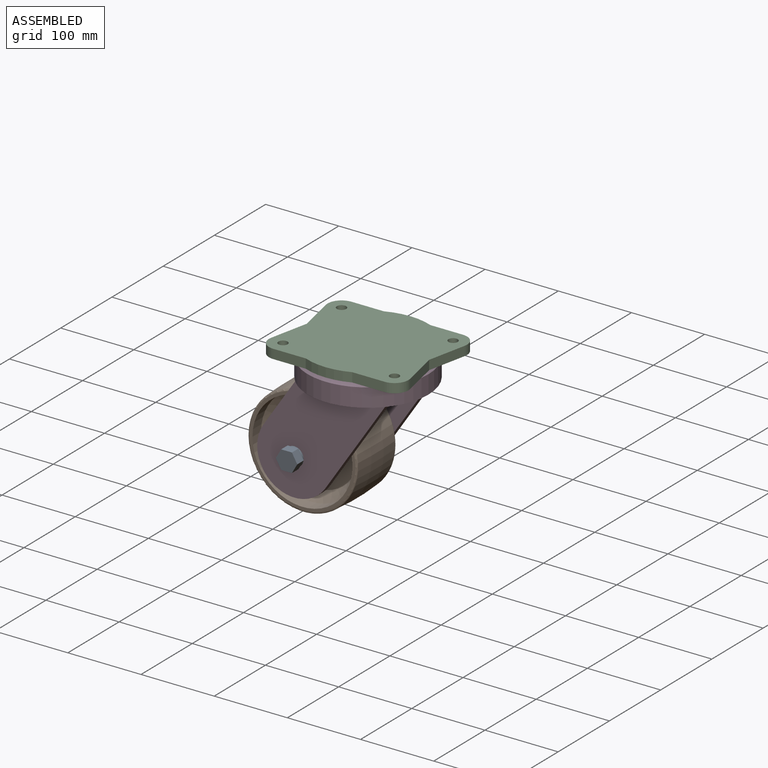
[diagram: assembled view]
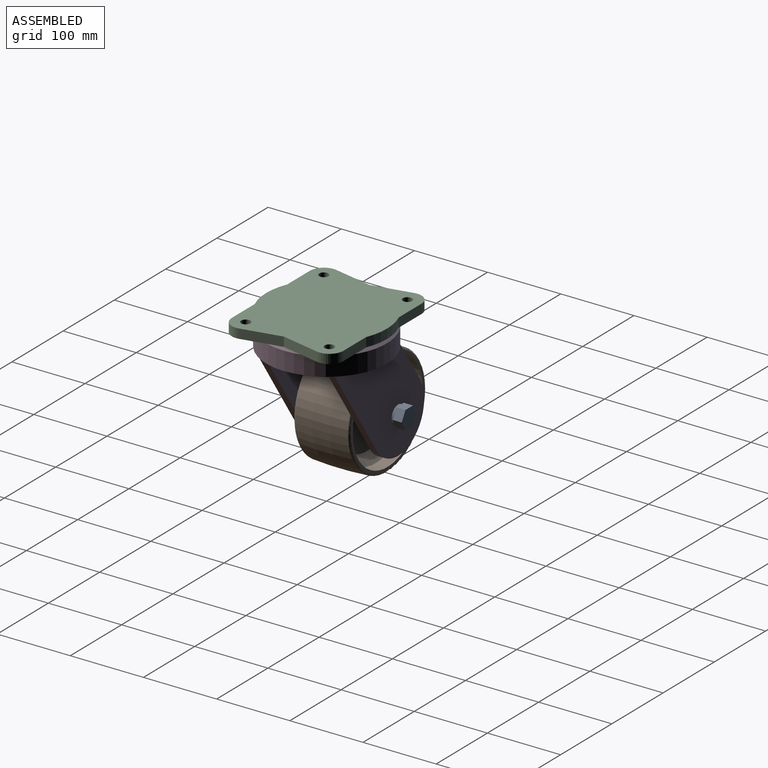
[diagram: assembled view, second angle]
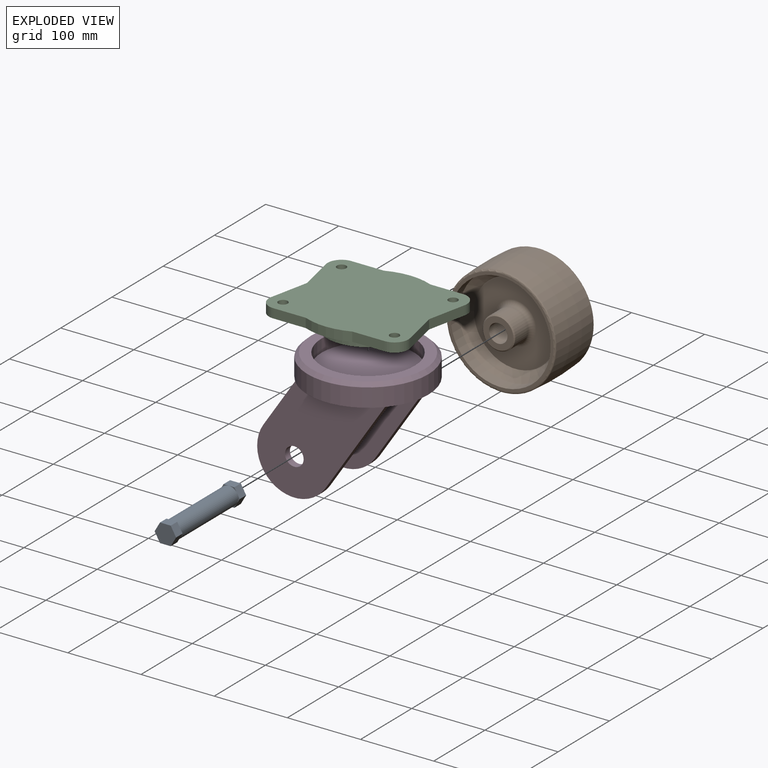
[diagram: exploded view]
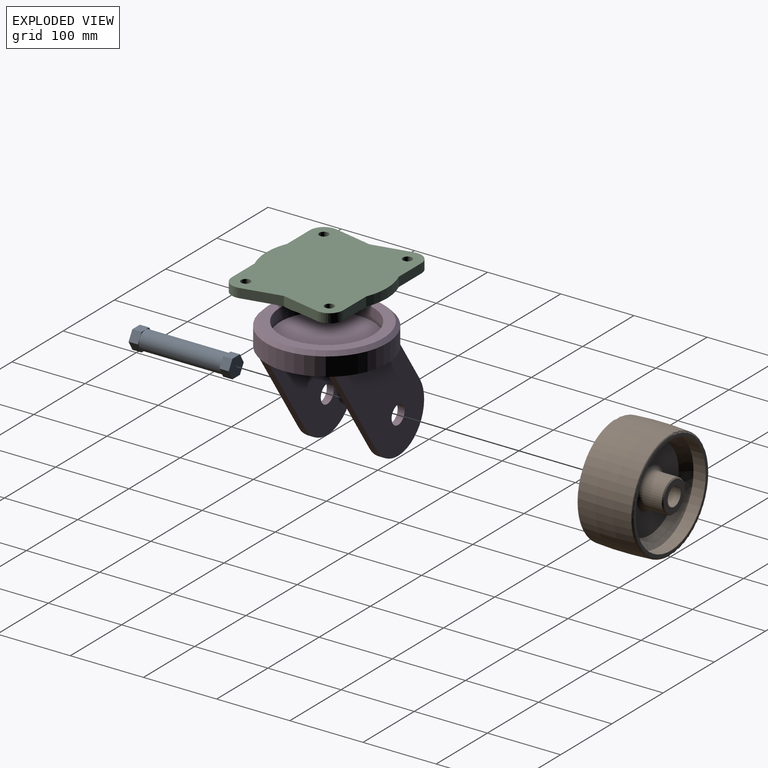
[diagram: exploded view, second angle]
ASSEMBLY  parts=4 mates=3
PART A: 17 faces, bbox 29.3x136.8x25.4 mm
  f0: cylinder r=12.67mm len=111.38mm, axis (0,1,0), area 8869.9mm2, adj f8,f16
  f1: plane 12.7x12.7mm, normal (0.87,0,0.5), area 186.2mm2, adj f2,f6,f7,f8
  f2: plane 14.66x12.7mm, normal (0,0,1), area 186.2mm2, adj f1,f3,f7,f8
  f3: plane 12.7x12.7mm, normal (-0.87,0,0.5), area 186.2mm2, adj f2,f4,f7,f8
  f4: plane 12.7x12.7mm, normal (-0.87,0,-0.5), area 186.2mm2, adj f3,f5,f7,f8
  f5: plane 14.66x12.7mm, normal (0,0,-1), area 186.2mm2, adj f4,f6,f7,f8
  f6: plane 12.7x12.7mm, normal (0.87,0,-0.5), area 186.2mm2, adj f1,f5,f7,f8
  f7: plane 29.33x25.4mm, normal (0,-1,0), area 558.7mm2, adj f1,f2,f3,f4,f5,f6
  f8: plane 29.33x25.4mm, normal (0,1,0), area 54mm2, adj f0,f1,f2,f3,f4,f5,f6
  f9: plane 12.7x12.7mm, normal (0.87,0,0.5), area 186.2mm2, adj f10,f14,f15,f16
  f10: plane 14.66x12.7mm, normal (0,0,1), area 186.2mm2, adj f9,f11,f15,f16
  f11: plane 12.7x12.7mm, normal (-0.87,0,0.5), area 186.2mm2, adj f10,f12,f15,f16
  f12: plane 12.7x12.7mm, normal (-0.87,0,-0.5), area 186.2mm2, adj f11,f13,f15,f16
  f13: plane 14.66x12.7mm, normal (0,0,-1), area 186.2mm2, adj f12,f14,f15,f16
  f14: plane 12.7x12.7mm, normal (0.87,0,-0.5), area 186.2mm2, adj f9,f13,f15,f16
  f15: plane 29.33x25.4mm, normal (0,1,0), area 558.7mm2, adj f9,f10,f11,f12,f13,f14
  f16: plane 29.33x25.4mm, normal (0,-1,0), area 54mm2, adj f0,f9,f10,f11,f12,f13,f14
PART B: 20 faces, bbox 162.1x85.7x162.1 mm
  f0: cone r=22.23mm half-angle=45deg, axis (0,-1,0), area 290.6mm2, adj f5,f17
  f1: torus R=72.33mm, axis (0,-1,0), area 1764mm2, adj f9,f19
  f2: cylinder r=68.33mm len=136.65mm, axis (0,-1,0), area 7186.1mm2, adj f3,f19
  f3: cone r=56.49mm half-angle=45deg, axis (0,1,0), area 6563.6mm2, adj f2,f18
  f4: torus R=28.57mm, axis (0,-1,0), area 1537.5mm2, adj f5,f18
  f5: cylinder r=22.23mm len=44.45mm, axis (0,-1,0), area 3555.8mm2, adj f0,f4
  f6: cylinder r=12.7mm len=85.73mm, axis (0,1,0), area 6840.6mm2, adj f14,f17
  f7: cone r=22.23mm half-angle=45deg, axis (0,1,0), area 290.6mm2, adj f13,f14
  f8: torus R=72.33mm, axis (0,1,0), area 1764mm2, adj f9,f16
  f9: revolved ~152.4x152.4mm, area 34064mm2, adj f1,f8
  f10: cylinder r=68.33mm len=136.65mm, axis (0,1,0), area 7186.1mm2, adj f11,f16
  f11: cone r=56.49mm half-angle=45deg, axis (0,-1,0), area 6563.6mm2, adj f10,f15
  f12: torus R=28.57mm, axis (0,1,0), area 1537.5mm2, adj f13,f15
  f13: cylinder r=22.23mm len=44.45mm, axis (0,1,0), area 3555.8mm2, adj f7,f12
  f14: plane 41.4x41.4mm, normal (0,-1,0), area 839.6mm2, adj f6,f7
  f15: plane 112.98x112.98mm, normal (0,-1,0), area 7459.9mm2, adj f11,f12
  f16: plane 144.65x144.65mm, normal (0,-1,0), area 1767.3mm2, adj f8,f10
  f17: plane 41.4x41.4mm, normal (0,1,0), area 839.6mm2, adj f0,f6
  f18: plane 112.98x112.98mm, normal (0,1,0), area 7459.9mm2, adj f3,f4
  f19: plane 144.65x144.65mm, normal (0,1,0), area 1767.3mm2, adj f1,f2
PART C: 25 faces, bbox 190.5x165.1x30.5 mm
  f0: cylinder r=6.35mm len=12.7mm, axis (0,0,1), area 506.7mm2, adj f15,f16
  f1: cylinder r=6.35mm len=12.7mm, axis (0,0,1), area 506.7mm2, adj f15,f16
  f2: cylinder r=19.05mm len=23.01mm, axis (0,0,1), area 430.7mm2, adj f15,f16,f22,f23
  f3: cylinder r=6.35mm len=12.7mm, axis (0,0,1), area 506.7mm2, adj f15,f16
  f4: cylinder r=6.35mm len=12.7mm, axis (0,0,1), area 506.7mm2, adj f15,f16
  f5: cone r=38.1mm half-angle=45deg, axis (0,0,-1), area 1605.2mm2, adj f6,f17
  f6: cylinder r=38.1mm len=76.2mm, axis (0,0,1), area 3040.2mm2, adj f5,f18
  f7: cylinder r=57.15mm len=114.3mm, axis (0,0,1), area 6384.5mm2, adj f15,f18
  f8: cylinder r=19.05mm len=23.01mm, axis (0,0,1), area 430.7mm2, adj f12,f13,f15,f16
  f9: plane 53.19x12.7mm, normal (-0.98,0.21,0), area 690.6mm2, adj f10,f15,f16,f19
  f10: cylinder r=19.05mm len=23.01mm, axis (0,0,1), area 430.7mm2, adj f9,f11,f15,f16
  f11: plane 44.45x12.7mm, normal (0,-1,0), area 564.5mm2, adj f10,f14,f15,f16
  f12: plane 44.45x12.7mm, normal (0,-1,0), area 564.5mm2, adj f8,f14,f15,f16
  f13: plane 53.19x12.7mm, normal (0.98,0.21,0), area 690.6mm2, adj f8,f15,f16,f23
  f14: cylinder r=82.55mm len=63.5mm, axis (0,0,1), area 827.8mm2, adj f11,f12,f15,f16
  f15: plane 190.5x165.1mm, normal (0,0,-1), area 17201.6mm2, adj f0,f1,f2,f3,f4,f7,f8,f9
  f16: plane 190.5x165.1mm, normal (0,0,1), area 27462.4mm2, adj f0,f1,f2,f3,f4,f8,f9,f10
  f17: plane 66.04x66.04mm, normal (0,0,-1), area 3425.3mm2, adj f5
  f18: plane 114.3x114.3mm, normal (0,0,-1), area 5700.5mm2, adj f6,f7
  f19: plane 53.19x12.7mm, normal (-0.98,-0.21,0), area 690.6mm2, adj f9,f15,f16,f20
  f20: cylinder r=19.05mm len=23.01mm, axis (0,0,1), area 430.7mm2, adj f15,f16,f19,f21
  f21: plane 44.45x12.7mm, normal (0,1,0), area 564.5mm2, adj f15,f16,f20,f24
  f22: plane 44.45x12.7mm, normal (0,1,0), area 564.5mm2, adj f2,f15,f16,f24
  f23: plane 53.19x12.7mm, normal (0.98,-0.21,0), area 690.6mm2, adj f2,f13,f15,f16
  f24: cylinder r=82.55mm len=63.5mm, axis (0,0,1), area 827.8mm2, adj f15,f16,f21,f22
PART D: 20 faces, bbox 196.9x165.1x176.3 mm
  f0: cylinder r=12.7mm len=25.4mm, axis (0,-1,0), area 760.1mm2, adj f18,f19
  f1: cylinder r=50.8mm len=93.07mm, axis (0,-1,0), area 1520.1mm2, adj f16,f17,f18,f19
  f2: cylinder r=12.7mm len=25.4mm, axis (0,1,0), area 760.1mm2, adj f11,f12
  f3: cone r=82.55mm half-angle=45deg, axis (0,0,-1), area 3611.6mm2, adj f6,f15
  f4: cylinder r=63.5mm len=127mm, axis (0,0,-1), area 6992.6mm2, adj f13,f15
  f5: cylinder r=25.4mm len=50.8mm, axis (0,0,1), area 506.7mm2, adj f8,f14
  f6: cylinder r=82.55mm len=165.1mm, axis (0,0,-1), area 13042.7mm2, adj f3,f8
  f7: cylinder r=50.8mm len=93.07mm, axis (0,1,0), area 1520.1mm2, adj f9,f10,f11,f12
  f8: plane 165.1x165.1mm, normal (0,0,-1), area 17055.4mm2, adj f5,f6,f9,f10,f11,f12,f16,f17
  f9: plane 67.07x44.71mm, normal (-0.83,0,0.55), area 767.8mm2, adj f7,f8,f11,f12
  f10: plane 123.43x82.29mm, normal (0.83,0,-0.55), area 1413mm2, adj f7,f8,f11,f12
  f11: plane 175.35x146.05mm, normal (0,-1,0), area 15177.7mm2, adj f2,f7,f8,f9,f10
  f12: plane 175.35x146.05mm, normal (0,1,0), area 15177.7mm2, adj f2,f7,f8,f9,f10
  f13: plane 127x127mm, normal (0,0,1), area 12667.7mm2, adj f4
  f14: plane 50.8x50.8mm, normal (0,0,-1), area 2026.8mm2, adj f5
  f15: plane 154.94x154.94mm, normal (0,0,1), area 6186.9mm2, adj f3,f4
  f16: plane 67.07x44.71mm, normal (-0.83,0,0.55), area 767.8mm2, adj f1,f8,f18,f19
  f17: plane 123.43x82.29mm, normal (0.83,0,-0.55), area 1413mm2, adj f1,f8,f18,f19
  f18: plane 175.35x146.05mm, normal (0,1,0), area 15177.7mm2, adj f0,f1,f8,f16,f17
  f19: plane 175.35x146.05mm, normal (0,-1,0), area 15177.7mm2, adj f0,f1,f8,f16,f17
PLACE A t=(-190.38,-18.52,-58.62)mm
PLACE B t=(-190.38,-17.76,-58.62)mm
PLACE C t=(-190.38,-18.52,-59.89)mm
PLACE D t=(-190.38,-18.52,-58.62)mm
MATE fastened B.f6 <-> D.f0  axis (0,1,0) through (-190.38,25.1,-58.62)mm
MATE fastened A.f0 <-> D.f0  axis (0,-1,0) through (-190.38,-86.91,-58.62)mm
MATE fastened C.f6 <-> D.f3  axis (0,0,-1) through (-126.88,-18.52,49.33)mm
